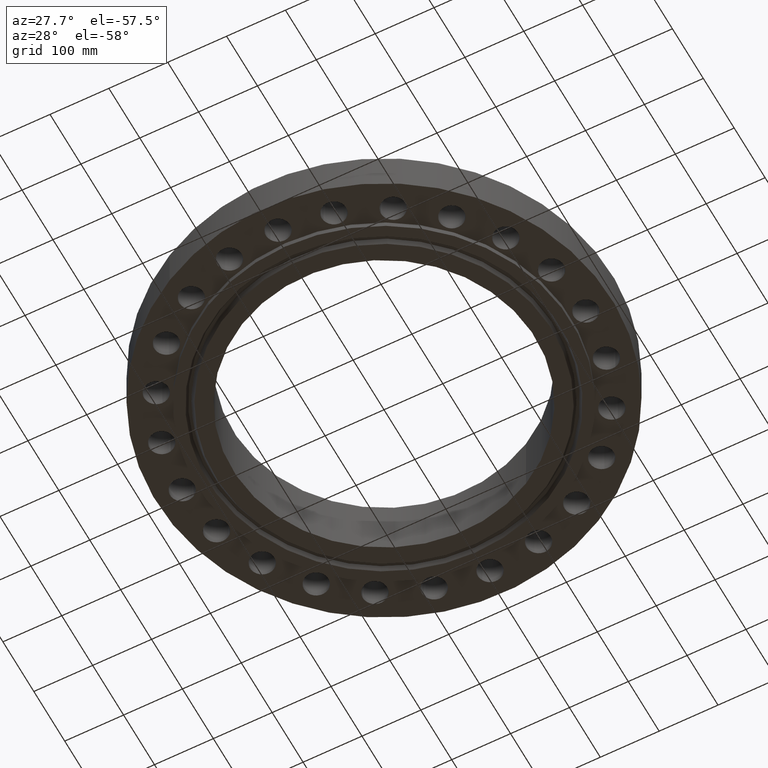
[diagram: clean part render]
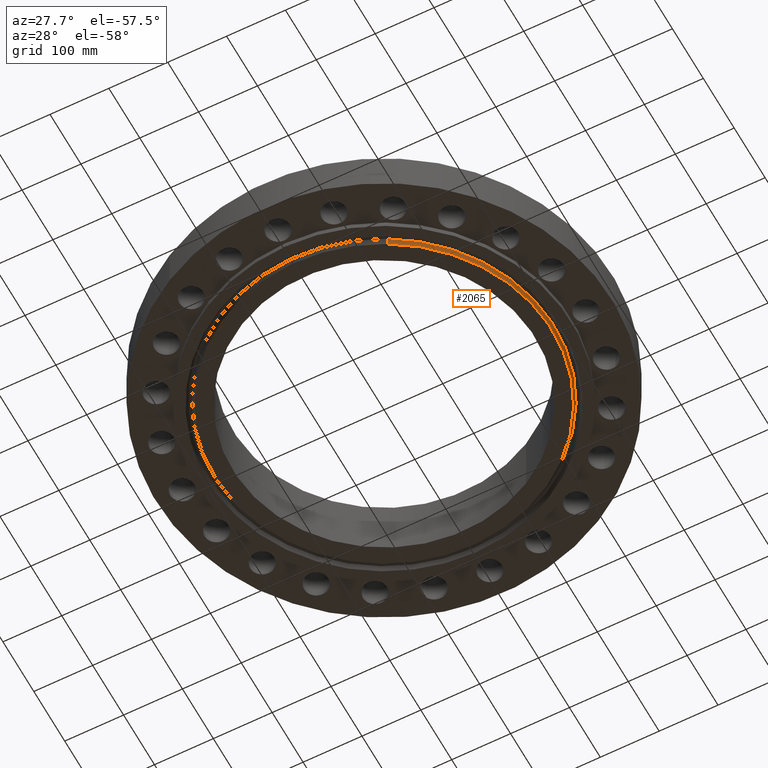
[diagram: same view with one face highlighted and labeled with its STEP entity id]
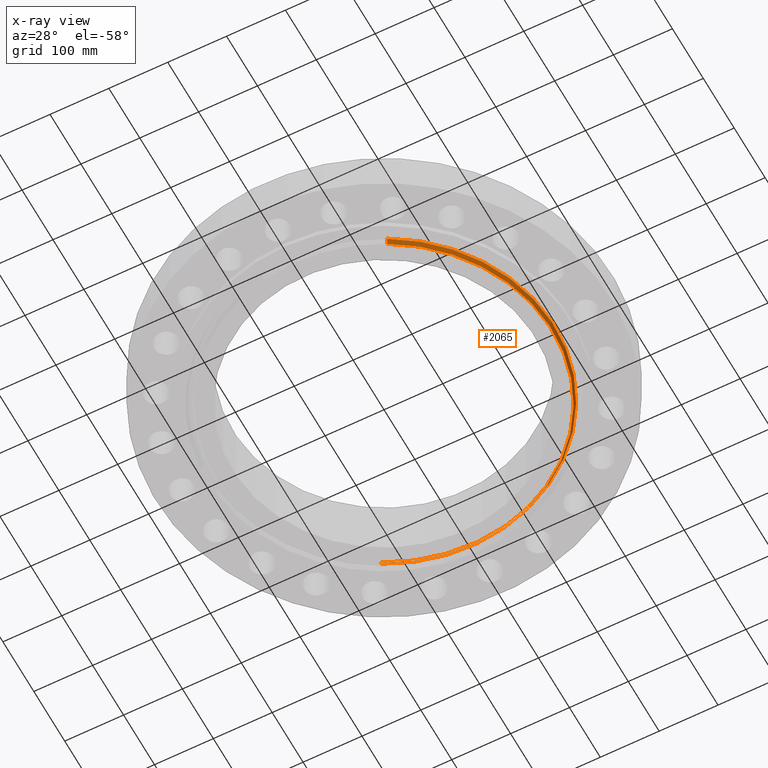
[diagram: x-ray of the same camera — body ghosted, the highlighted face saturated]
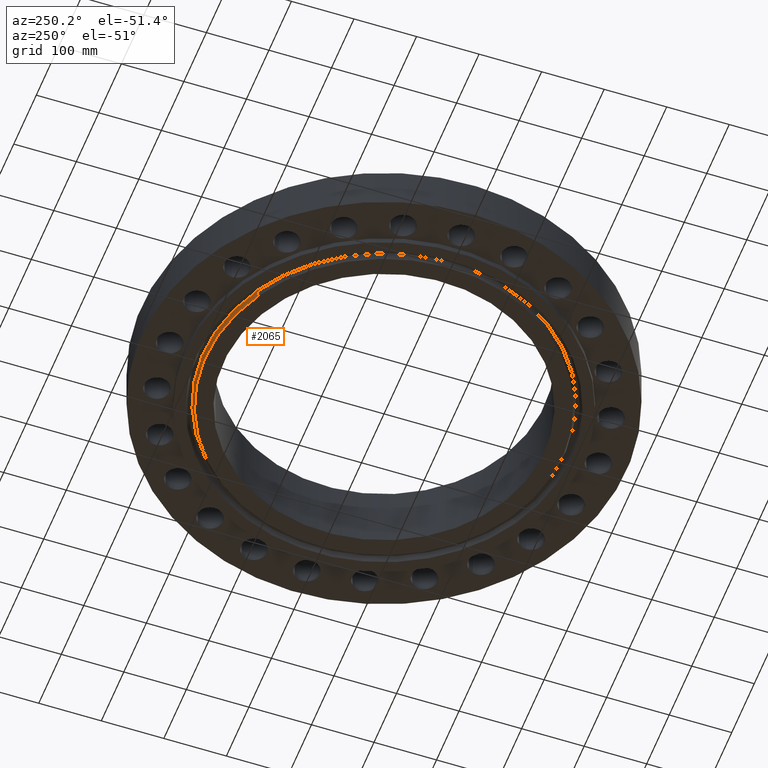
[diagram: same view with one face highlighted and labeled with its STEP entity id]
A machine part, auxiliary view. The second image highlights one B-rep face of the part: STEP entity #2065.
The next image is the same camera in x-ray: the body ghosted, the highlighted face saturated — about 0% of this face is hidden behind the body in this view.
A second angle (auxiliary view) of the same face is appended — the face is thin or edge-on in the first view.
In plain terms, the highlighted conical surface has half-angle 23 deg.
Its self-contained STEP definition (entity closure, byte-faithful):
#1871=AXIS2_PLACEMENT_3D('Circle Axis2P3D',#1869,#1870,$) ;
#2015=AXIS2_PLACEMENT_3D('Circle Axis2P3D',#2013,#2014,$) ;
#2047=AXIS2_PLACEMENT_3D('Cone Axis2P3D',#2044,#2045,#2046) ;
#1869=CARTESIAN_POINT('Axis2P3D Location',(3.35689481461E-015,-2.23792987641E-015,-0.375000000001)) ;
#1873=CARTESIAN_POINT('Vertex',(-5.38603429964,9.85906965421,-0.375000000001)) ;
#1875=CARTESIAN_POINT('Vertex',(5.38603429964,-9.85906965421,-0.375000000001)) ;
#2010=CARTESIAN_POINT('Vertex',(5.45459903157,-9.98457655415,-0.0380793044696)) ;
#2013=CARTESIAN_POINT('Axis2P3D Location',(0.,0.,-0.0380793044696)) ;
#2017=CARTESIAN_POINT('Vertex',(-5.45459903157,9.98457655415,-0.0380793044696)) ;
#2044=CARTESIAN_POINT('Axis2P3D Location',(0.,0.,-0.435000000002)) ;
#2049=CARTESIAN_POINT('Line Origine',(-5.4203166656,9.92182310418,-0.206539652236)) ;
#2054=CARTESIAN_POINT('Line Origine',(5.4203166656,-9.92182310418,-0.206539652236)) ;
#1870=DIRECTION('Axis2P3D Direction',(0.,0.,-0.0393700787402)) ;
#2014=DIRECTION('Axis2P3D Direction',(0.,0.,0.0393700787402)) ;
#2045=DIRECTION('Axis2P3D Direction',(0.,0.,0.0393700787402)) ;
#2046=DIRECTION('Axis2P3D XDirection',(-0.0188750212049,0.0345504945626,0.)) ;
#2050=DIRECTION('Vector Direction',(-0.00737505833565,0.0134999537303,0.0362403485611)) ;
#2055=DIRECTION('Vector Direction',(0.00737505833565,-0.0134999537303,0.0362403485611)) ;
#2051=VECTOR('Line Direction',#2050,0.0393700787402) ;
#2056=VECTOR('Line Direction',#2055,0.0393700787402) ;
#2060=ORIENTED_EDGE('',*,*,#2053,.F.) ;
#2061=ORIENTED_EDGE('',*,*,#2019,.F.) ;
#2062=ORIENTED_EDGE('',*,*,#2058,.T.) ;
#2063=ORIENTED_EDGE('',*,*,#1877,.F.) ;
#2065=ADVANCED_FACE('PartBody',(#2064),#2048,.T.) ;
#1872=CIRCLE('generated circle',#1871,11.23435) ;
#2016=CIRCLE('generated circle',#2015,11.3773643504) ;
#2048=CONICAL_SURFACE('Cone',#2047,11.2088815111,0.401425727959) ;
#1877=EDGE_CURVE('',#1874,#1876,#1872,.T.) ;
#2019=EDGE_CURVE('',#2011,#2018,#2016,.T.) ;
#2053=EDGE_CURVE('',#2018,#1874,#2052,.F.) ;
#2058=EDGE_CURVE('',#2011,#1876,#2057,.F.) ;
#2059=EDGE_LOOP('',(#2060,#2061,#2062,#2063)) ;
#2064=FACE_OUTER_BOUND('',#2059,.T.) ;
#2052=LINE('Line',#2049,#2051) ;
#2057=LINE('Line',#2054,#2056) ;
#1874=VERTEX_POINT('',#1873) ;
#1876=VERTEX_POINT('',#1875) ;
#2011=VERTEX_POINT('',#2010) ;
#2018=VERTEX_POINT('',#2017) ;